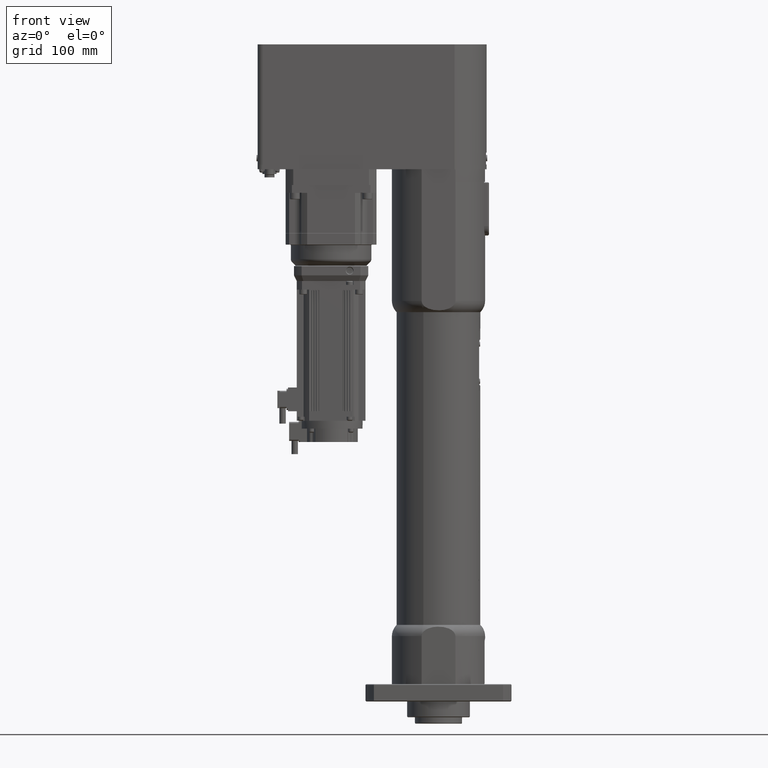
[diagram: clean part render]
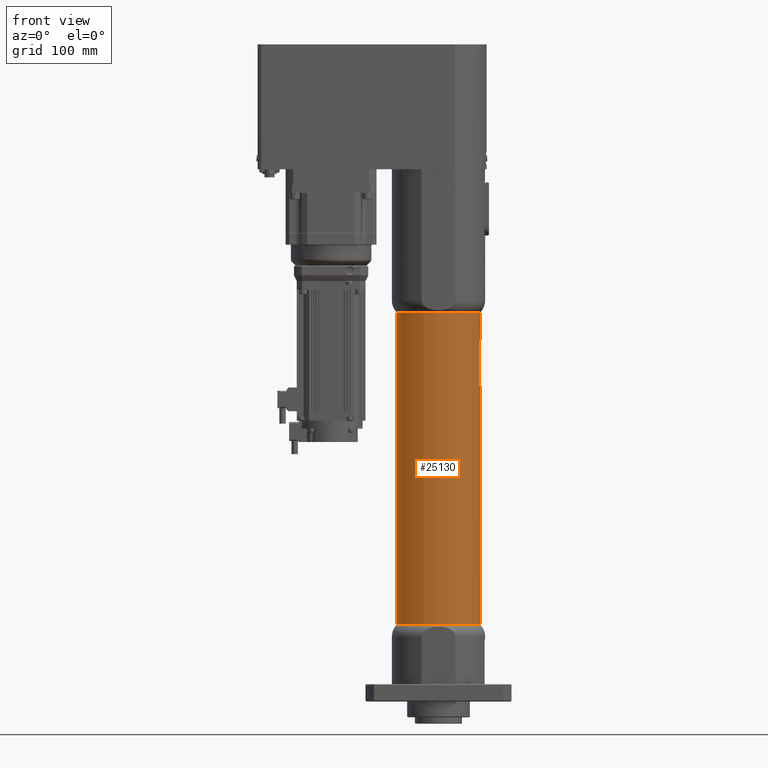
[diagram: same view with one face highlighted and labeled with its STEP entity id]
A machine part, front view. The second image highlights one B-rep face of the part: STEP entity #25130.
In plain terms, the highlighted cylindrical surface (bore or boss wall) has radius 53 mm, axis along (0, 0, 1).
Its self-contained STEP definition (entity closure, byte-faithful):
#558=B_SPLINE_CURVE_WITH_KNOTS('',3,(#42224,#42225,#42226,#42227,#42228,
#42229,#42230,#42231,#42232,#42233),.UNSPECIFIED.,.F.,.F.,(4,2,2,2,4),(0.75588536662023,
0.947750576174119,1.13961578572801,1.32809233231067,1.51656887889333),
 .UNSPECIFIED.);
#559=B_SPLINE_CURVE_WITH_KNOTS('',3,(#42241,#42242,#42243,#42244,#42245,
#42246,#42247,#42248,#42249,#42250),.UNSPECIFIED.,.F.,.F.,(4,2,2,2,4),(1.51656887889333,
1.70598866186224,1.89540844483115,2.08633146341896,2.27725448200676),
 .UNSPECIFIED.);
#560=B_SPLINE_CURVE_WITH_KNOTS('',3,(#42254,#42255,#42256,#42257,#42258,
#42259,#42260,#42261,#42262,#42263),.UNSPECIFIED.,.F.,.F.,(4,2,2,2,4),(0.,
0.188476546582662,0.376953093165323,0.568818302719209,0.760683512273095),
 .UNSPECIFIED.);
#561=B_SPLINE_CURVE_WITH_KNOTS('',3,(#42271,#42272,#42273,#42274,#42275,
#42276,#42277,#42278,#42279,#42280),.UNSPECIFIED.,.F.,.F.,(4,2,2,2,4),(-0.760683512273095,
-0.568818302719209,-0.376953093165323,-0.188476546582661,0.),
 .UNSPECIFIED.);
#2093=LINE('',#42237,#3932);
#2097=LINE('',#42267,#3936);
#3932=VECTOR('',#33801,10.);
#3936=VECTOR('',#33811,10.);
#5415=FACE_BOUND('',#8291,.T.);
#5416=FACE_BOUND('',#8292,.T.);
#6612=FACE_OUTER_BOUND('',#8290,.T.);
#8290=EDGE_LOOP('',(#20735));
#8291=EDGE_LOOP('',(#20736,#20737,#20738,#20739,#20740,#20741,#20742,#20743));
#8292=EDGE_LOOP('',(#20744));
#9622=CIRCLE('',#27557,53.);
#9625=CIRCLE('',#27561,53.);
#9654=CIRCLE('',#27615,53.);
#9655=CIRCLE('',#27623,53.);
#11594=VERTEX_POINT('',#41869);
#11599=VERTEX_POINT('',#41948);
#11667=VERTEX_POINT('',#42217);
#11668=VERTEX_POINT('',#42218);
#11669=VERTEX_POINT('',#42223);
#11670=VERTEX_POINT('',#42236);
#11671=VERTEX_POINT('',#42240);
#11672=VERTEX_POINT('',#42253);
#11673=VERTEX_POINT('',#42266);
#11674=VERTEX_POINT('',#42270);
#14698=EDGE_CURVE('',#11594,#11594,#9622,.T.);
#14703=EDGE_CURVE('',#11599,#11599,#9625,.T.);
#14798=EDGE_CURVE('',#11667,#11668,#9654,.T.);
#14801=EDGE_CURVE('',#11668,#11669,#558,.T.);
#14803=EDGE_CURVE('',#11669,#11670,#2093,.T.);
#14805=EDGE_CURVE('',#11670,#11671,#559,.T.);
#14807=EDGE_CURVE('',#11672,#11667,#560,.T.);
#14809=EDGE_CURVE('',#11673,#11672,#2097,.T.);
#14811=EDGE_CURVE('',#11674,#11673,#561,.T.);
#14813=EDGE_CURVE('',#11671,#11674,#9655,.T.);
#20735=ORIENTED_EDGE('',*,*,#14703,.F.);
#20736=ORIENTED_EDGE('',*,*,#14798,.T.);
#20737=ORIENTED_EDGE('',*,*,#14801,.T.);
#20738=ORIENTED_EDGE('',*,*,#14803,.T.);
#20739=ORIENTED_EDGE('',*,*,#14805,.T.);
#20740=ORIENTED_EDGE('',*,*,#14813,.T.);
#20741=ORIENTED_EDGE('',*,*,#14811,.T.);
#20742=ORIENTED_EDGE('',*,*,#14809,.T.);
#20743=ORIENTED_EDGE('',*,*,#14807,.T.);
#20744=ORIENTED_EDGE('',*,*,#14698,.F.);
#22565=CYLINDRICAL_SURFACE('',#27624,53.);
#25130=ADVANCED_FACE('',(#6612,#5415,#5416),#22565,.T.);
#27557=AXIS2_PLACEMENT_3D('',#41870,#33619,#33620);
#27561=AXIS2_PLACEMENT_3D('',#41949,#33627,#33628);
#27615=AXIS2_PLACEMENT_3D('',#42219,#33792,#33793);
#27623=AXIS2_PLACEMENT_3D('',#42283,#33818,#33819);
#27624=AXIS2_PLACEMENT_3D('',#42284,#33820,#33821);
#33619=DIRECTION('center_axis',(-1.18602403724772E-15,-1.97215226305253E-31,
-1.));
#33620=DIRECTION('ref_axis',(2.10942374678792E-15,1.,-2.67915024414683E-30));
#33627=DIRECTION('center_axis',(1.18602403724772E-15,1.97215226305253E-31,
1.));
#33628=DIRECTION('ref_axis',(2.10942374678792E-15,1.,-2.67915024414683E-30));
#33792=DIRECTION('center_axis',(1.18602403724772E-15,1.97215226305253E-31,
1.));
#33793=DIRECTION('ref_axis',(2.10942374678792E-15,1.,-2.67915024414683E-30));
#33801=DIRECTION('',(-1.18602403724772E-15,-1.97215226305253E-31,-1.));
#33811=DIRECTION('',(1.18602403724772E-15,1.97215226305253E-31,1.));
#33818=DIRECTION('center_axis',(-1.18602403724772E-15,-1.97215226305253E-31,
-1.));
#33819=DIRECTION('ref_axis',(2.10942374678792E-15,1.,-2.67915024414683E-30));
#33820=DIRECTION('center_axis',(1.18602403724772E-15,1.97215226305253E-31,
1.));
#33821=DIRECTION('ref_axis',(2.10942374678792E-15,1.,-2.67915024414683E-30));
#41869=CARTESIAN_POINT('',(3.82962021729963E-12,53.,97.));
#41870=CARTESIAN_POINT('Origin',(1.18372712945988E-13,-1.06093161637589E-18,
97.));
#41948=CARTESIAN_POINT('',(19.1118536543822,49.4341688500323,493.));
#41949=CARTESIAN_POINT('Origin',(5.88038231696083E-13,-1.06093161620234E-18,
493.));
#42217=CARTESIAN_POINT('',(52.3927475897198,-7.99999999999797,458.));
#42218=CARTESIAN_POINT('',(52.3927475897192,8.00000000000196,458.));
#42219=CARTESIAN_POINT('Origin',(5.46527390392413E-13,-1.06093161620234E-18,
458.));
#42223=CARTESIAN_POINT('',(51.3809303146606,13.000000000002,453.));
#42224=CARTESIAN_POINT('Ctrl Pts',(52.3927475897192,8.00000000000196,458.));
#42225=CARTESIAN_POINT('Ctrl Pts',(52.2962116352267,8.63222298713438,458.));
#42226=CARTESIAN_POINT('Ctrl Pts',(52.1806373920266,9.30465569243522,457.872961983958));
#42227=CARTESIAN_POINT('Ctrl Pts',(51.945150753094,10.5402490228232,457.358327618834));
#42228=CARTESIAN_POINT('Ctrl Pts',(51.825854188262,11.1035492714613,456.97078489692));
#42229=CARTESIAN_POINT('Ctrl Pts',(51.6288700170851,11.9858444942607,456.081918169547));
#42230=CARTESIAN_POINT('Ctrl Pts',(51.5375737723885,12.367160247889,455.523578733708));
#42231=CARTESIAN_POINT('Ctrl Pts',(51.4132328918611,12.8743018171446,454.296811154853));
#42232=CARTESIAN_POINT('Ctrl Pts',(51.3809303146606,13.000000000002,453.628255155276));
#42233=CARTESIAN_POINT('Ctrl Pts',(51.3809303146606,13.000000000002,453.));
#42236=CARTESIAN_POINT('',(51.3809303146605,13.000000000002,405.));
#42237=CARTESIAN_POINT('',(51.3809303146601,13.0000000000019,96.9999999999999));
#42240=CARTESIAN_POINT('',(52.3927475897191,8.00000000000195,400.));
#42241=CARTESIAN_POINT('Ctrl Pts',(51.3809303146605,13.000000000002,405.));
#42242=CARTESIAN_POINT('Ctrl Pts',(51.3809303146605,13.000000000002,404.368600723437));
#42243=CARTESIAN_POINT('Ctrl Pts',(51.413557895599,12.8730524978743,403.696932557517));
#42244=CARTESIAN_POINT('Ctrl Pts',(51.539000363417,12.3612643726916,402.465439016742));
#42245=CARTESIAN_POINT('Ctrl Pts',(51.6310602382303,11.9765515552565,401.905483743389));
#42246=CARTESIAN_POINT('Ctrl Pts',(51.8285324743596,11.0910163400328,401.019948528165));
#42247=CARTESIAN_POINT('Ctrl Pts',(51.9473320410526,10.5293491660951,400.635806540635));
#42248=CARTESIAN_POINT('Ctrl Pts',(52.1817111501914,9.29846876922579,400.12580562089));
#42249=CARTESIAN_POINT('Ctrl Pts',(52.2966856935743,8.62911833471505,400.));
#42250=CARTESIAN_POINT('Ctrl Pts',(52.3927475897191,8.00000000000196,400.));
#42253=CARTESIAN_POINT('',(51.3809303146616,-12.999999999998,453.));
#42254=CARTESIAN_POINT('Ctrl Pts',(51.3809303146616,-12.999999999998,453.));
#42255=CARTESIAN_POINT('Ctrl Pts',(51.3809303146616,-12.999999999998,453.628255155276));
#42256=CARTESIAN_POINT('Ctrl Pts',(51.4132328918621,-12.8743018171406,454.296811154853));
#42257=CARTESIAN_POINT('Ctrl Pts',(51.5375737723895,-12.367160247885,455.523578733708));
#42258=CARTESIAN_POINT('Ctrl Pts',(51.628870017086,-11.9858444942567,456.081918169547));
#42259=CARTESIAN_POINT('Ctrl Pts',(51.8258541882629,-11.1035492714573,456.97078489692));
#42260=CARTESIAN_POINT('Ctrl Pts',(51.9451507530948,-10.5402490228192,457.358327618834));
#42261=CARTESIAN_POINT('Ctrl Pts',(52.1806373920274,-9.30465569243123,457.872961983958));
#42262=CARTESIAN_POINT('Ctrl Pts',(52.2962116352273,-8.63222298713039,458.));
#42263=CARTESIAN_POINT('Ctrl Pts',(52.3927475897198,-7.99999999999798,458.));
#42266=CARTESIAN_POINT('',(51.3809303146615,-12.999999999998,405.));
#42267=CARTESIAN_POINT('',(51.3809303146612,-12.9999999999979,96.9999999999999));
#42270=CARTESIAN_POINT('',(52.3927475897197,-7.99999999999796,400.));
#42271=CARTESIAN_POINT('Ctrl Pts',(52.3927475897197,-7.99999999999796,400.));
#42272=CARTESIAN_POINT('Ctrl Pts',(52.2962116352272,-8.63222298713037,400.));
#42273=CARTESIAN_POINT('Ctrl Pts',(52.1806373920273,-9.3046556924312,400.127038016042));
#42274=CARTESIAN_POINT('Ctrl Pts',(51.9451507530947,-10.5402490228192,400.641672381166));
#42275=CARTESIAN_POINT('Ctrl Pts',(51.8258541882628,-11.1035492714573,401.02921510308));
#42276=CARTESIAN_POINT('Ctrl Pts',(51.6288700170859,-11.9858444942567,401.918081830453));
#42277=CARTESIAN_POINT('Ctrl Pts',(51.5375737723894,-12.367160247885,402.476421266292));
#42278=CARTESIAN_POINT('Ctrl Pts',(51.413232891862,-12.8743018171406,403.703188845147));
#42279=CARTESIAN_POINT('Ctrl Pts',(51.3809303146615,-12.999999999998,404.371744844724));
#42280=CARTESIAN_POINT('Ctrl Pts',(51.3809303146615,-12.999999999998,405.));
#42283=CARTESIAN_POINT('Origin',(4.77737996232046E-13,-1.06093161632856E-18,
400.));
#42284=CARTESIAN_POINT('Origin',(1.18372712945988E-13,-1.06093161637589E-18,
97.));